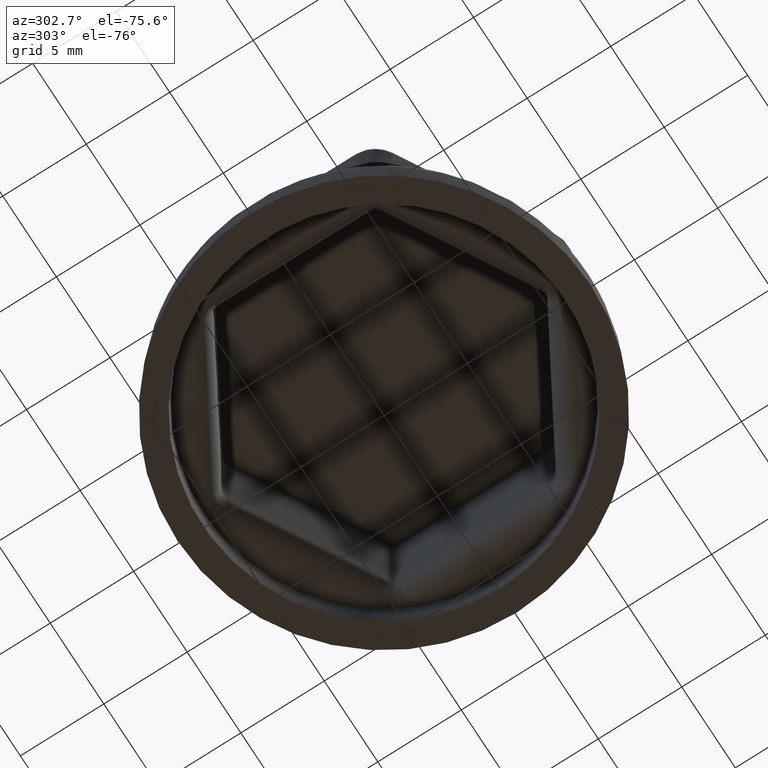
[diagram: clean part render]
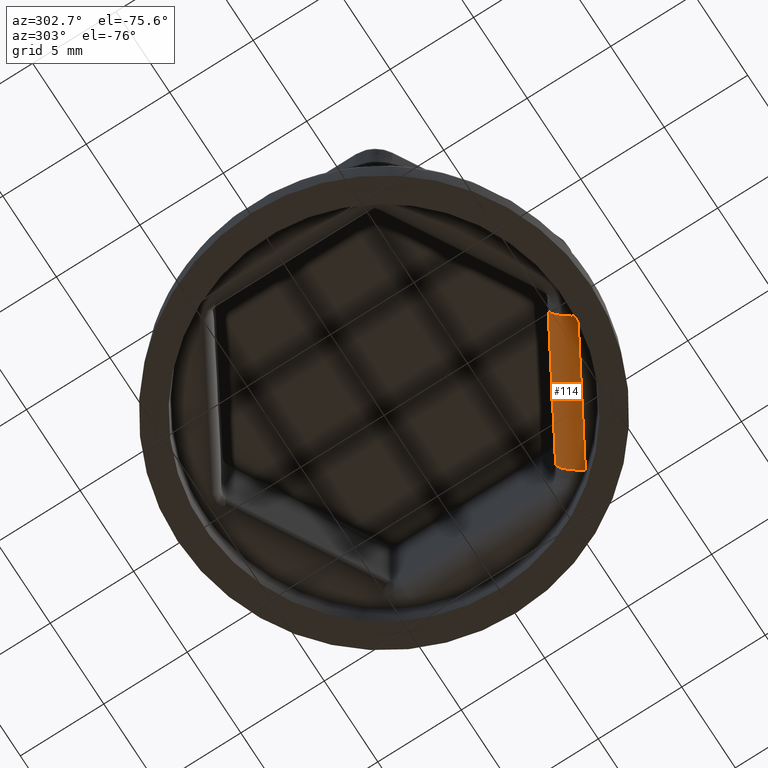
[diagram: same view with one face highlighted and labeled with its STEP entity id]
A machine part, auxiliary view. The second image highlights one B-rep face of the part: STEP entity #114.
In plain terms, the highlighted cylindrical surface (edge-blend (fillet) strip) has radius 1.5 mm, axis along (0.866, 0.5, 0).
Its self-contained STEP definition (entity closure, byte-faithful):
#114 = ADVANCED_FACE( '', ( #286 ), #287, .T. );
#286 = FACE_OUTER_BOUND( '', #1506, .T. );
#287 = CYLINDRICAL_SURFACE( '', #1507, 1.50000000000000 );
#1506 = EDGE_LOOP( '', ( #5607, #5608, #5609, #5610 ) );
#1507 = AXIS2_PLACEMENT_3D( '', #5611, #5612, #5613 );
#5607 = ORIENTED_EDGE( '', *, *, #6145, .F. );
#5608 = ORIENTED_EDGE( '', *, *, #6215, .T. );
#5609 = ORIENTED_EDGE( '', *, *, #6216, .T. );
#5610 = ORIENTED_EDGE( '', *, *, #6136, .T. );
#5611 = CARTESIAN_POINT( '', ( 13.4870229473368, -3.73029983518736, 3.70000000000000 ) );
#5612 = DIRECTION( '', ( 0.866025403784439, 0.500000000000000, 0.000000000000000 ) );
#5613 = DIRECTION( '', ( 0.500000000000000, -0.866025403784439, 0.000000000000000 ) );
#6136 = EDGE_CURVE( '', #6470, #6468, #6471, .T. );
#6145 = EDGE_CURVE( '', #6484, #6468, #6486, .T. );
#6215 = EDGE_CURVE( '', #6484, #6586, #6590, .T. );
#6216 = EDGE_CURVE( '', #6586, #6470, #6591, .T. );
#6468 = VERTEX_POINT( '', #7103 );
#6470 = VERTEX_POINT( '', #7110 );
#6471 = LINE( '', #7111, #7112 );
#6484 = VERTEX_POINT( '', #7143 );
#6486 = CIRCLE( '', #7145, 1.50000000000000 );
#6586 = VERTEX_POINT( '', #7443 );
#6590 = LINE( '', #7447, #7448 );
#6591 = CIRCLE( '', #7449, 1.50000000000000 );
#7103 = CARTESIAN_POINT( '', ( 7.70998634750132, -5.33388646337917, 3.67382139034408 ) );
#7110 = CARTESIAN_POINT( '', ( 0.764288004437626, -9.34398727145692, 3.67382139034408 ) );
#7111 = CARTESIAN_POINT( '', ( 12.7371371759695, -2.43145957930623, 3.67382139034408 ) );
#7112 = VECTOR( '', #9214, 1000.00000000000 );
#7143 = CARTESIAN_POINT( '', ( 8.45987211886861, -6.63272671926030, 2.20000000000000 ) );
#7145 = AXIS2_PLACEMENT_3D( '', #9224, #9225, #9226 );
#7443 = CARTESIAN_POINT( '', ( 1.51417377580492, -10.6428275273381, 2.20000000000000 ) );
#7447 = CARTESIAN_POINT( '', ( 4.98702294733677, -8.63777712329918, 2.20000000000000 ) );
#7448 = VECTOR( '', #9375, 1000.00000000000 );
#7449 = AXIS2_PLACEMENT_3D( '', #9376, #9377, #9378 );
#9214 = DIRECTION( '', ( 0.866025403784439, 0.500000000000000, 8.67361737988404E-019 ) );
#9224 = CARTESIAN_POINT( '', ( 8.45987211886861, -6.63272671926030, 3.70000000000000 ) );
#9225 = DIRECTION( '', ( 0.866025403784439, 0.500000000000000, -7.12422486495306E-016 ) );
#9226 = DIRECTION( '', ( -0.500000000000000, 0.866025403784439, 0.000000000000000 ) );
#9375 = DIRECTION( '', ( -0.866025403784439, -0.500000000000000, 0.000000000000000 ) );
#9376 = CARTESIAN_POINT( '', ( 1.51417377580492, -10.6428275273381, 3.70000000000000 ) );
#9377 = DIRECTION( '', ( 0.866025403784439, 0.500000000000000, 0.000000000000000 ) );
#9378 = DIRECTION( '', ( -0.500000000000000, 0.866025403784439, 0.000000000000000 ) );